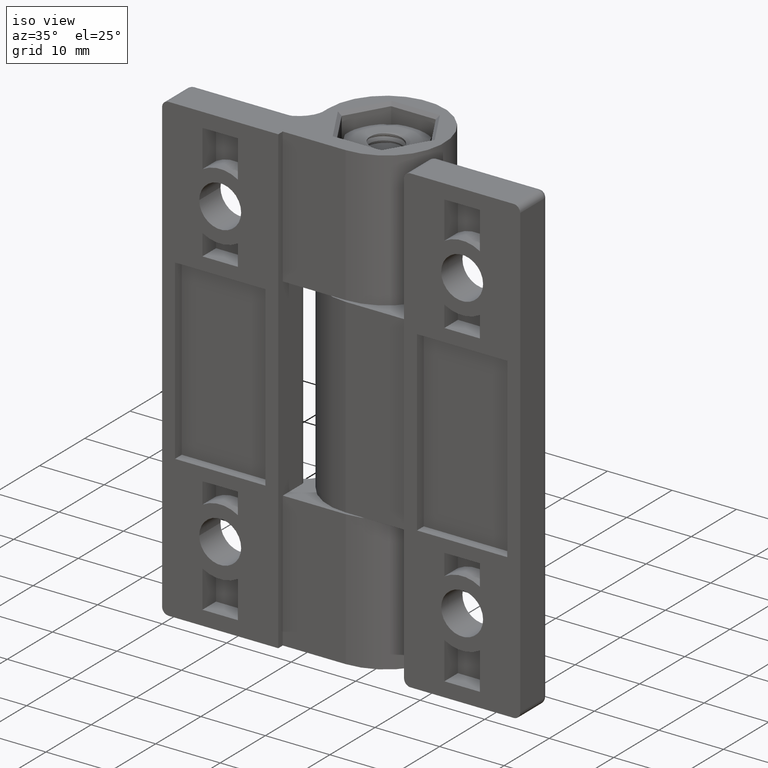
[diagram: clean part render]
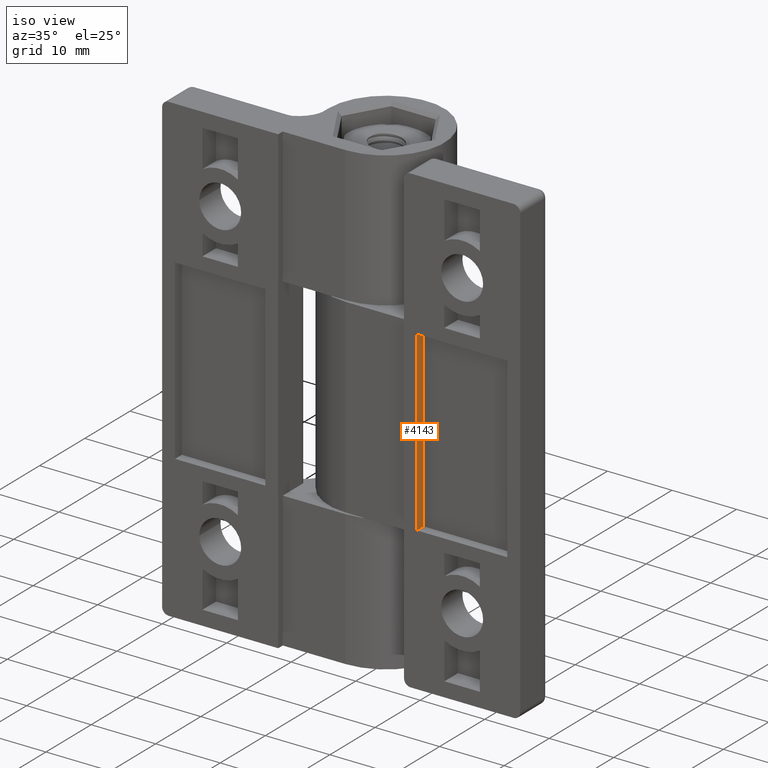
[diagram: same view with one face highlighted and labeled with its STEP entity id]
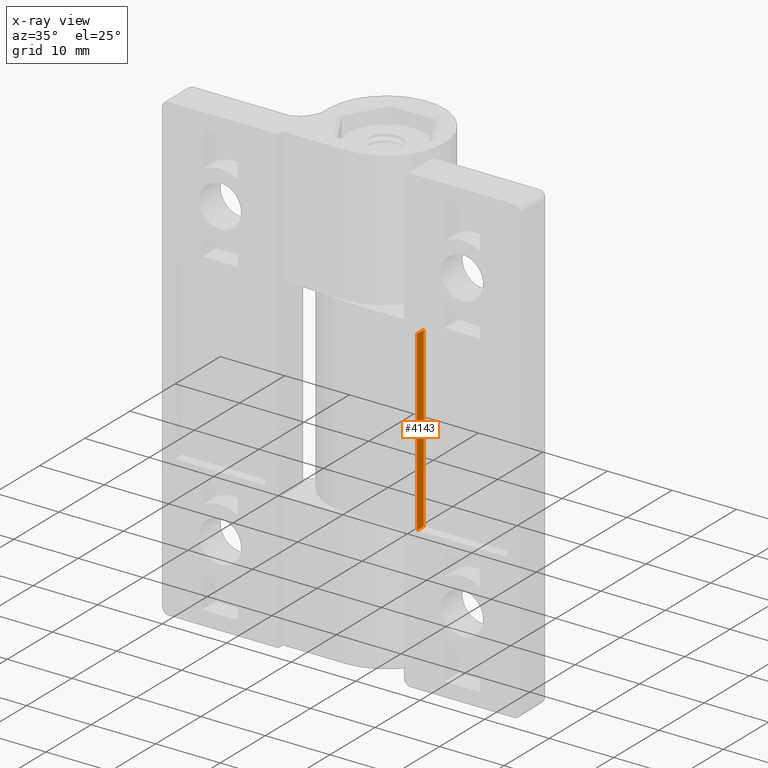
[diagram: x-ray of the same camera — body ghosted, the highlighted face saturated]
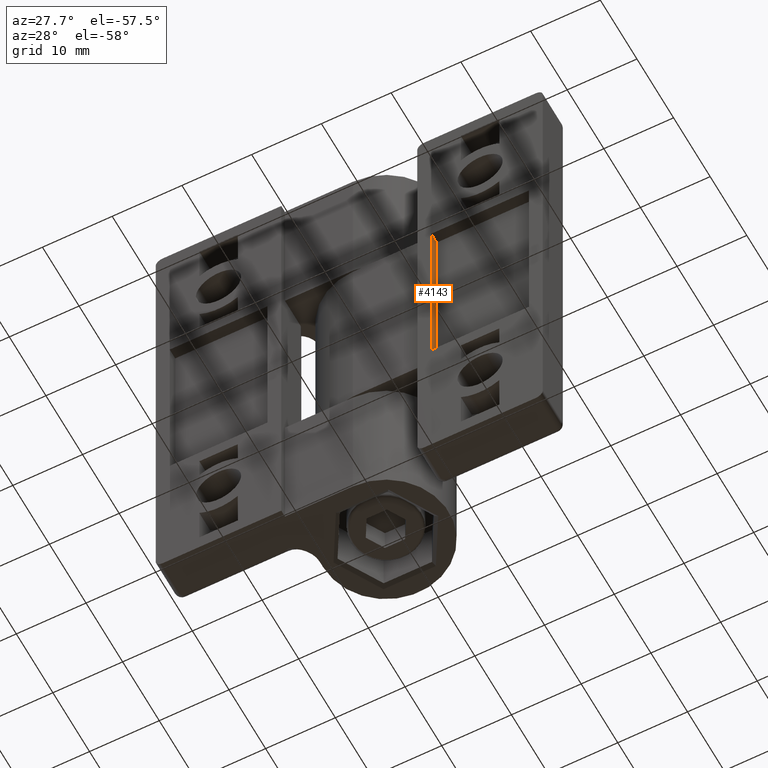
[diagram: same view with one face highlighted and labeled with its STEP entity id]
A machine part, iso view. The second image highlights one B-rep face of the part: STEP entity #4143.
The next image is the same camera in x-ray: the body ghosted, the highlighted face saturated — about 0% of this face is hidden behind the body in this view.
A second angle (auxiliary view) of the same face is appended — the face is thin or edge-on in the first view.
In plain terms, the highlighted planar face has unit normal (-1, -0, 0).
Its self-contained STEP definition (entity closure, byte-faithful):
#535=PLANE('',#4420);
#709=FACE_OUTER_BOUND('',#927,.T.);
#927=EDGE_LOOP('',(#3899,#3900,#3901,#3902));
#1142=LINE('',#37277,#1407);
#1199=LINE('',#37448,#1464);
#1200=LINE('',#37450,#1465);
#1201=LINE('',#37451,#1466);
#1407=VECTOR('',#5063,27.5);
#1464=VECTOR('',#5222,1.5);
#1465=VECTOR('',#5223,27.5);
#1466=VECTOR('',#5224,1.5);
#1999=VERTEX_POINT('',#37275);
#2000=VERTEX_POINT('',#37276);
#2051=VERTEX_POINT('',#37447);
#2052=VERTEX_POINT('',#37449);
#2594=EDGE_CURVE('',#1999,#2000,#1142,.T.);
#2671=EDGE_CURVE('',#1999,#2051,#1199,.T.);
#2672=EDGE_CURVE('',#2051,#2052,#1200,.T.);
#2673=EDGE_CURVE('',#2000,#2052,#1201,.T.);
#3899=ORIENTED_EDGE('',*,*,#2594,.F.);
#3900=ORIENTED_EDGE('',*,*,#2671,.T.);
#3901=ORIENTED_EDGE('',*,*,#2672,.T.);
#3902=ORIENTED_EDGE('',*,*,#2673,.F.);
#4143=ADVANCED_FACE('',(#709),#535,.F.);
#4420=AXIS2_PLACEMENT_3D('',#37446,#5220,#5221);
#5063=DIRECTION('',(0.,1.,0.));
#5220=DIRECTION('center_axis',(1.,0.,0.));
#5221=DIRECTION('ref_axis',(0.,1.,0.));
#5222=DIRECTION('',(0.,0.,1.));
#5223=DIRECTION('',(0.,1.,0.));
#5224=DIRECTION('',(0.,0.,1.));
#37275=CARTESIAN_POINT('',(67.2766159227696,-13.75,-1.09564014614029E-31));
#37276=CARTESIAN_POINT('',(67.2766159227696,13.75,-1.09564014614029E-31));
#37277=CARTESIAN_POINT('',(67.2766159227696,-6.875,-1.09564014614029E-31));
#37446=CARTESIAN_POINT('Origin',(67.2766159227696,-13.75,-1.09564014614029E-31));
#37447=CARTESIAN_POINT('',(67.2766159227696,-13.75,1.5));
#37448=CARTESIAN_POINT('',(67.2766159227696,-13.75,-1.09564014614029E-31));
#37449=CARTESIAN_POINT('',(67.2766159227696,13.75,1.5));
#37450=CARTESIAN_POINT('',(67.2766159227696,-13.75,1.5));
#37451=CARTESIAN_POINT('',(67.2766159227696,13.75,-1.09564014614029E-31));